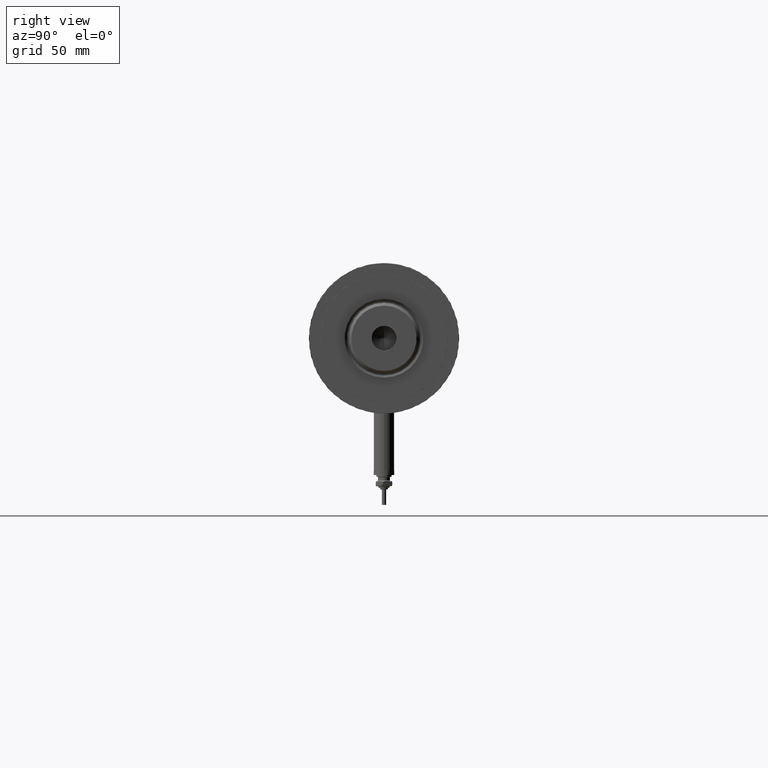
[diagram: clean part render]
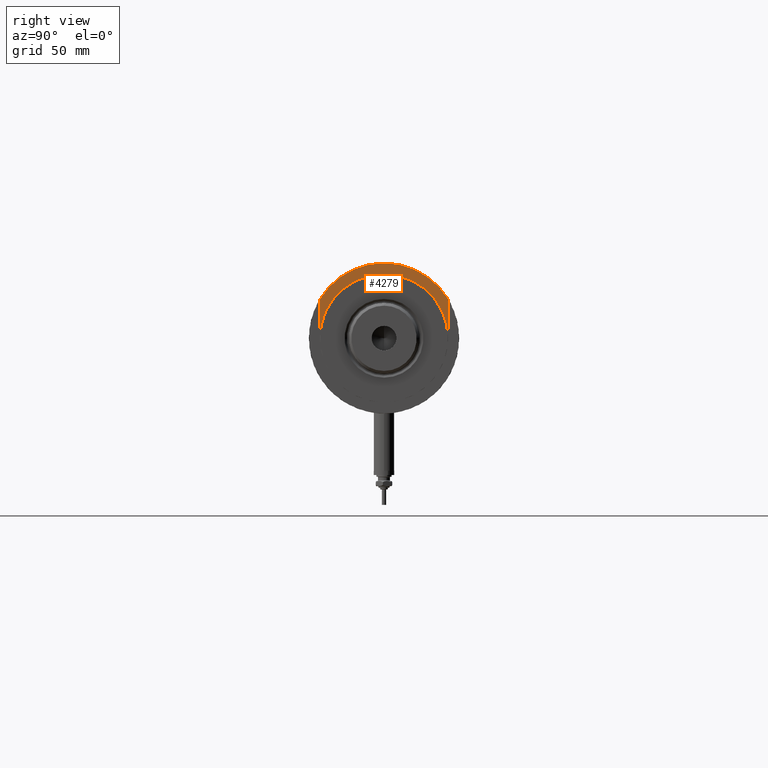
[diagram: same view with one face highlighted and labeled with its STEP entity id]
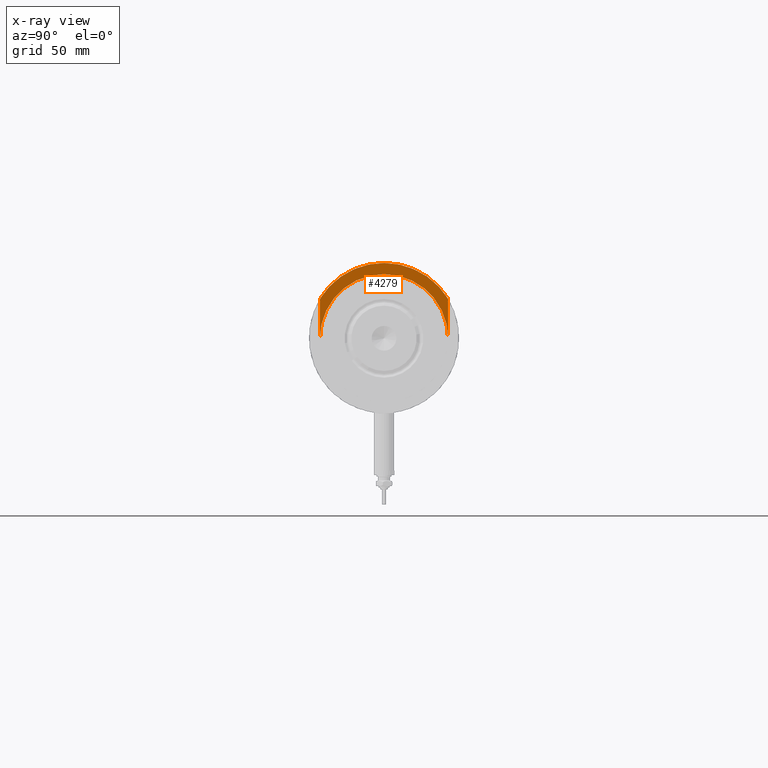
[diagram: x-ray of the same camera — body ghosted, the highlighted face saturated]
A machine part, right view. The second image highlights one B-rep face of the part: STEP entity #4279.
The next image is the same camera in x-ray: the body ghosted, the highlighted face saturated — about 0% of this face is hidden behind the body in this view.
In plain terms, the highlighted planar face has unit normal (1, 0, -0).
Its self-contained STEP definition (entity closure, byte-faithful):
#80 = VECTOR ( 'NONE', #716, 1000.000000000000000 ) ;
#123 = CARTESIAN_POINT ( 'NONE',  ( 0.000000000000000000, 0.000000000000000000, 27.89999999999999858 ) ) ;
#251 = DIRECTION ( 'NONE',  ( 0.000000000000000000, 0.000000000000000000, 1.000000000000000000 ) ) ;
#324 = ORIENTED_EDGE ( 'NONE', *, *, #4136, .F. ) ;
#334 = DIRECTION ( 'NONE',  ( -1.000000000000000000, -0.000000000000000000, -0.000000000000000000 ) ) ;
#373 = CARTESIAN_POINT ( 'NONE',  ( -37.50000000000000000, 4.592425496802574367E-15, 27.89999999999999858 ) ) ;
#417 = VERTEX_POINT ( 'NONE', #703 ) ;
#601 = CARTESIAN_POINT ( 'NONE',  ( -44.00000000000000000, 0.000000000000000000, 27.89999999999999858 ) ) ;
#663 = DIRECTION ( 'NONE',  ( 1.000000000000000000, 0.000000000000000000, 0.000000000000000000 ) ) ;
#703 = CARTESIAN_POINT ( 'NONE',  ( -23.01629857296780557, -37.50000000000000000, 27.89999999999999858 ) ) ;
#716 = DIRECTION ( 'NONE',  ( 1.000000000000000000, 0.000000000000000000, 0.000000000000000000 ) ) ;
#722 = ORIENTED_EDGE ( 'NONE', *, *, #2367, .T. ) ;
#771 = CARTESIAN_POINT ( 'NONE',  ( 0.000000000000000000, 0.000000000000000000, 27.89999999999999858 ) ) ;
#779 = EDGE_CURVE ( 'NONE', #4714, #3055, #2169, .T. ) ;
#1201 = DIRECTION ( 'NONE',  ( 1.000000000000000000, 0.000000000000000000, 0.000000000000000000 ) ) ;
#1531 = DIRECTION ( 'NONE',  ( 0.000000000000000000, 0.000000000000000000, 1.000000000000000000 ) ) ;
#1547 = CIRCLE ( 'NONE', #5321, 44.00000000000000000 ) ;
#1592 = CARTESIAN_POINT ( 'NONE',  ( 0.000000000000000000, 0.000000000000000000, 27.89999999999999858 ) ) ;
#1655 = DIRECTION ( 'NONE',  ( -0.000000000000000000, -0.000000000000000000, -1.000000000000000000 ) ) ;
#1707 = LINE ( 'NONE', #4863, #3939 ) ;
#1709 = FACE_OUTER_BOUND ( 'NONE', #4065, .T. ) ;
#1729 = ORIENTED_EDGE ( 'NONE', *, *, #2045, .F. ) ;
#1760 = ORIENTED_EDGE ( 'NONE', *, *, #5054, .T. ) ;
#1797 = CIRCLE ( 'NONE', #2176, 37.50000000000000000 ) ;
#2045 = EDGE_CURVE ( 'NONE', #3167, #417, #1707, .T. ) ;
#2078 = AXIS2_PLACEMENT_3D ( 'NONE', #123, #3880, #663 ) ;
#2169 = CIRCLE ( 'NONE', #2078, 37.50000000000000000 ) ;
#2176 = AXIS2_PLACEMENT_3D ( 'NONE', #1592, #1655, #1201 ) ;
#2349 = EDGE_CURVE ( 'NONE', #5353, #4205, #2578, .T. ) ;
#2367 = EDGE_CURVE ( 'NONE', #3167, #4714, #1797, .T. ) ;
#2538 = CARTESIAN_POINT ( 'NONE',  ( -23.01629857296780557, 37.50000000000000000, 27.89999999999999858 ) ) ;
#2545 = CARTESIAN_POINT ( 'NONE',  ( 0.000000000000000000, -37.50000000000000000, 27.89999999999999858 ) ) ;
#2578 = CIRCLE ( 'NONE', #5498, 44.00000000000000000 ) ;
#2619 = DIRECTION ( 'NONE',  ( 1.000000000000000000, 0.000000000000000000, -0.000000000000000000 ) ) ;
#2926 = ORIENTED_EDGE ( 'NONE', *, *, #779, .T. ) ;
#2986 = CARTESIAN_POINT ( 'NONE',  ( -23.01629857296780557, 37.50000000000000000, 27.89999999999999858 ) ) ;
#2994 = CARTESIAN_POINT ( 'NONE',  ( 0.000000000000000000, 0.000000000000000000, 27.89999999999999858 ) ) ;
#3055 = VERTEX_POINT ( 'NONE', #5479 ) ;
#3124 = DIRECTION ( 'NONE',  ( 0.000000000000000000, 0.000000000000000000, 1.000000000000000000 ) ) ;
#3167 = VERTEX_POINT ( 'NONE', #2545 ) ;
#3391 = DIRECTION ( 'NONE',  ( 1.000000000000000000, 0.000000000000000000, 0.000000000000000000 ) ) ;
#3591 = ORIENTED_EDGE ( 'NONE', *, *, #2349, .T. ) ;
#3621 = PLANE ( 'NONE',  #5802 ) ;
#3880 = DIRECTION ( 'NONE',  ( -0.000000000000000000, -0.000000000000000000, -1.000000000000000000 ) ) ;
#3939 = VECTOR ( 'NONE', #334, 1000.000000000000000 ) ;
#4065 = EDGE_LOOP ( 'NONE', ( #1729, #722, #2926, #324, #3591, #1760 ) ) ;
#4136 = EDGE_CURVE ( 'NONE', #5353, #3055, #4455, .T. ) ;
#4205 = VERTEX_POINT ( 'NONE', #601 ) ;
#4279 = ADVANCED_FACE ( 'NONE', ( #1709 ), #3621, .T. ) ;
#4455 = LINE ( 'NONE', #2538, #80 ) ;
#4714 = VERTEX_POINT ( 'NONE', #373 ) ;
#4863 = CARTESIAN_POINT ( 'NONE',  ( -23.01629857296780557, -37.50000000000000000, 27.89999999999999858 ) ) ;
#5054 = EDGE_CURVE ( 'NONE', #4205, #417, #1547, .T. ) ;
#5321 = AXIS2_PLACEMENT_3D ( 'NONE', #5695, #1531, #3391 ) ;
#5335 = DIRECTION ( 'NONE',  ( 1.000000000000000000, 0.000000000000000000, 0.000000000000000000 ) ) ;
#5353 = VERTEX_POINT ( 'NONE', #2986 ) ;
#5479 = CARTESIAN_POINT ( 'NONE',  ( 0.000000000000000000, 37.50000000000000000, 27.89999999999999858 ) ) ;
#5498 = AXIS2_PLACEMENT_3D ( 'NONE', #2994, #3124, #5335 ) ;
#5695 = CARTESIAN_POINT ( 'NONE',  ( 0.000000000000000000, 0.000000000000000000, 27.89999999999999858 ) ) ;
#5802 = AXIS2_PLACEMENT_3D ( 'NONE', #771, #251, #2619 ) ;